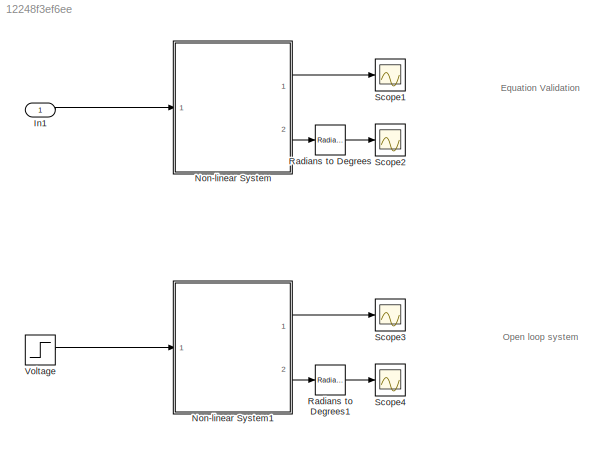
MODEL slx_12248f3ef6ee
KIND model
CONFIG AbsTol = auto
CONFIG EnableMultiTasking = off
CONFIG FixedStep = auto
CONFIG MaxStep = auto
CONFIG MinStep = auto
CONFIG RelTol = 1e-5
CONFIG SampleTimeConstraint = Unconstrained
CONFIG Solver = VariableStepAuto
CONFIG SolverName = VariableStepAuto
CONFIG StartTime = 0.0
CONFIG StopTime = 10
BLOCK [Inport] In1
  IconDisplay = Port number
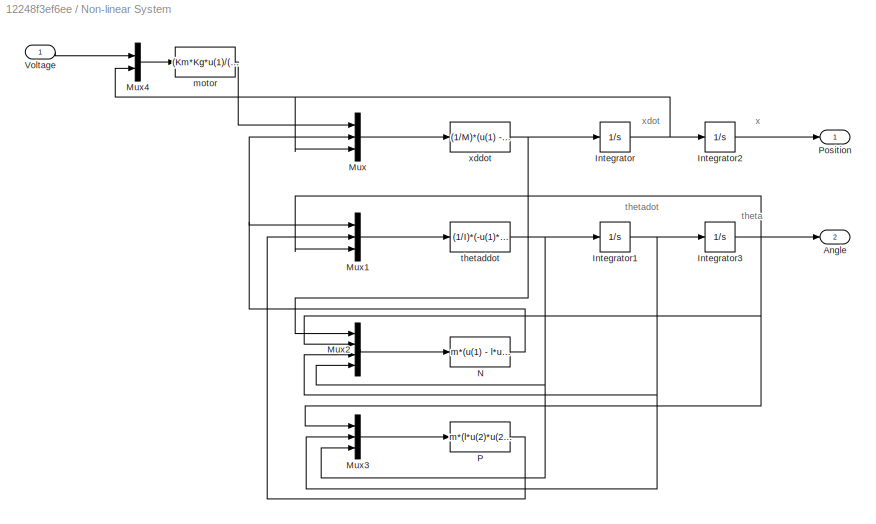
BLOCK [SubSystem] Non-linear System
  Ports = [1, 2]
  RequestExecContextInheritance = off
BLOCK [Outport] Non-linear System/Angle
  IconDisplay = Port number
  Port = 2
BLOCK [Integrator] Non-linear System/Integrator
  ContinuousStateAttributes = 'xdot'
  Ports = [1, 1]
BLOCK [Integrator] Non-linear System/Integrator1
  ContinuousStateAttributes = 'thetadot'
  Ports = [1, 1]
BLOCK [Integrator] Non-linear System/Integrator2
  ContinuousStateAttributes = 'x'
  Ports = [1, 1]
BLOCK [Integrator] Non-linear System/Integrator3
  ContinuousStateAttributes = 'theta'
  InitialCondition = pi/2
  Ports = [1, 1]
BLOCK [Mux] Non-linear System/Mux
  DisplayOption = bar
  Inputs = 3
  Ports = [3, 1]
BLOCK [Mux] Non-linear System/Mux1
  DisplayOption = bar
  Inputs = 3
  Ports = [3, 1]
BLOCK [Mux] Non-linear System/Mux2
  DisplayOption = bar
  Ports = [4, 1]
BLOCK [Mux] Non-linear System/Mux3
  DisplayOption = bar
  Inputs = 3
  Ports = [3, 1]
BLOCK [Mux] Non-linear System/Mux4
  DisplayOption = bar
  Inputs = 2
  Ports = [2, 1]
BLOCK [Fcn] Non-linear System/N
  Expr = m*(u(1) - l*u(3)*u(3)*sin(u(2)) + l*u(4)*cos(u(2)))
BLOCK [Fcn] Non-linear System/P
  Expr = m*(l*u(2)*u(2)*cos(u(1)) + l*u(3)*sin(u(1)) + g)
BLOCK [Outport] Non-linear System/Position
  IconDisplay = Port number
BLOCK [Inport] Non-linear System/Voltage
  IconDisplay = Port number
BLOCK [Fcn] Non-linear System/motor
  Expr = (Km*Kg*u(1)/(R*r))-(Km^2*Kg^2*u(2)/(R*r^2))
BLOCK [Fcn] Non-linear System/thetaddot
  Expr = (1/I)*(-u(1)*l*cos(u(3)) - u(2)*l*sin(u(3)))
BLOCK [Fcn] Non-linear System/xddot
  Expr = (1/M)*(u(1) - u(2) - b*u(3))
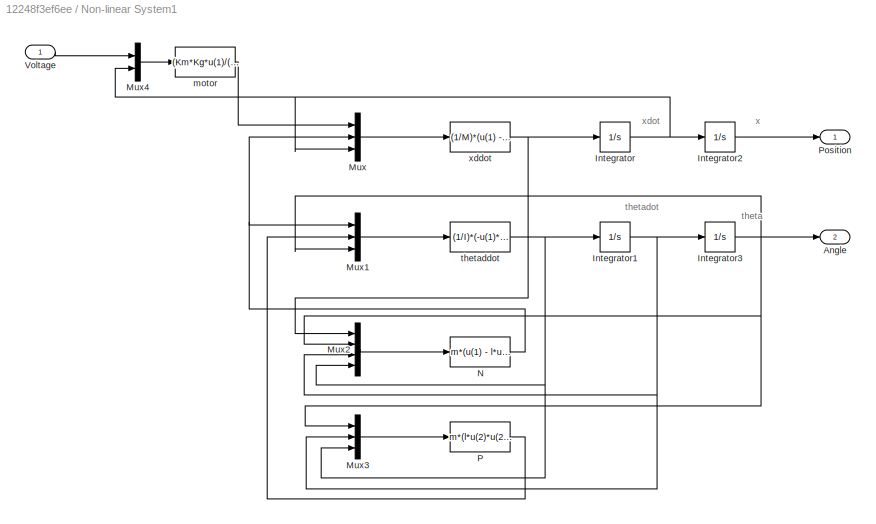
BLOCK [SubSystem] Non-linear System1
  Ports = [1, 2]
  RequestExecContextInheritance = off
BLOCK [Outport] Non-linear System1/Angle
  IconDisplay = Port number
  Port = 2
BLOCK [Integrator] Non-linear System1/Integrator
  ContinuousStateAttributes = 'xdot'
  Ports = [1, 1]
BLOCK [Integrator] Non-linear System1/Integrator1
  ContinuousStateAttributes = 'thetadot'
  Ports = [1, 1]
BLOCK [Integrator] Non-linear System1/Integrator2
  ContinuousStateAttributes = 'x'
  Ports = [1, 1]
BLOCK [Integrator] Non-linear System1/Integrator3
  ContinuousStateAttributes = 'theta'
  InitialCondition = pi/2
  Ports = [1, 1]
BLOCK [Mux] Non-linear System1/Mux
  DisplayOption = bar
  Inputs = 3
  Ports = [3, 1]
BLOCK [Mux] Non-linear System1/Mux1
  DisplayOption = bar
  Inputs = 3
  Ports = [3, 1]
BLOCK [Mux] Non-linear System1/Mux2
  DisplayOption = bar
  Ports = [4, 1]
BLOCK [Mux] Non-linear System1/Mux3
  DisplayOption = bar
  Inputs = 3
  Ports = [3, 1]
BLOCK [Mux] Non-linear System1/Mux4
  DisplayOption = bar
  Inputs = 2
  Ports = [2, 1]
BLOCK [Fcn] Non-linear System1/N
  Expr = m*(u(1) - l*u(3)*u(3)*sin(u(2)) + l*u(4)*cos(u(2)))
BLOCK [Fcn] Non-linear System1/P
  Expr = m*(l*u(2)*u(2)*cos(u(1)) + l*u(3)*sin(u(1)) + g)
BLOCK [Outport] Non-linear System1/Position
  IconDisplay = Port number
BLOCK [Inport] Non-linear System1/Voltage
  IconDisplay = Port number
BLOCK [Fcn] Non-linear System1/motor
  Expr = (Km*Kg*u(1)/(R*r))-(Km^2*Kg^2*u(2)/(R*r^2))
BLOCK [Fcn] Non-linear System1/thetaddot
  Expr = (1/I)*(-u(1)*l*cos(u(3)) - u(2)*l*sin(u(3)))
BLOCK [Fcn] Non-linear System1/xddot
  Expr = (1/M)*(u(1) - u(2) - b*u(3))
BLOCK [Reference] Radians to Degrees  REF=simulink_extras/Transformations/Radians
to Degrees
  Ports = [1, 1]
  SourceBlock = simulink_extras/Transformations/Radians\nto Degrees
  SourceProductBaseCode = SL
  SourceProductName = Simulink
  SourceType = RadiansToDegrees
BLOCK [Reference] Radians to Degrees1  REF=simulink_extras/Transformations/Radians
to Degrees
  Ports = [1, 1]
  SourceBlock = simulink_extras/Transformations/Radians\nto Degrees
  SourceProductBaseCode = SL
  SourceProductName = Simulink
  SourceType = RadiansToDegrees
BLOCK [Scope] Scope1
  Floating = off
  NumInputPorts = 1
  Ports = [1]
  ScopeSpecificationString = Simulink.scopes.TimeScopeBlockCfg('CurrentConfiguration', extmgr.ConfigurationSet(extmgr.Configuration('Core','General UI',true),extmgr.Configuration('Core','Source UI',true),extmgr.Configuration('Sources','WiredSimulink',true,'DataLoggingVariableName','ScopeData1'),extmgr.Configuration('Visuals','Time Domain',true,'SerializedDisplays',{struct('MinYLimReal','-0.05455','MaxYLimReal','0.0587','YLabe...<+1446ch>
BLOCK [Scope] Scope2
  Floating = off
  NumInputPorts = 1
  Ports = [1]
  ScopeSpecificationString = Simulink.scopes.TimeScopeBlockCfg('CurrentConfiguration', extmgr.ConfigurationSet(extmgr.Configuration('Core','General UI',true),extmgr.Configuration('Core','Source UI',true),extmgr.Configuration('Sources','WiredSimulink',true,'DataLoggingVariableName','ScopeData2'),extmgr.Configuration('Visuals','Time Domain',true,'SerializedDisplays',{struct('MinYLimReal','-100.28303','MaxYLimReal','111.14256','...<+1515ch>
BLOCK [Scope] Scope3
  Floating = off
  NumInputPorts = 1
  Ports = [1]
  ScopeSpecificationString = Simulink.scopes.TimeScopeBlockCfg('CurrentConfiguration', extmgr.ConfigurationSet(extmgr.Configuration('Core','General UI',true),extmgr.Configuration('Core','Source UI',true),extmgr.Configuration('Sources','WiredSimulink',true,'DataLoggingVariableName','ScopeData1'),extmgr.Configuration('Visuals','Time Domain',true,'SerializedDisplays',{struct('MinYLimReal','-0.27021','MaxYLimReal','2.43188','YLab...<+1451ch>
BLOCK [Scope] Scope4
  Floating = off
  NumInputPorts = 1
  Ports = [1]
  ScopeSpecificationString = Simulink.scopes.TimeScopeBlockCfg('CurrentConfiguration', extmgr.ConfigurationSet(extmgr.Configuration('Core','General UI',true),extmgr.Configuration('Core','Source UI',true),extmgr.Configuration('Sources','WiredSimulink',true,'DataLoggingVariableName','ScopeData2'),extmgr.Configuration('Visuals','Time Domain',true,'SerializedDisplays',{struct('MinYLimReal','-100.26713','MaxYLimReal','111.14079','...<+1516ch>
BLOCK [Step] Voltage
  Before = 1
  SampleTime = 0
  Time = 0
ANNOTATION (root): Equation Validation
ANNOTATION (root): Open loop system
ANNOTATION Non-linear System: theta
ANNOTATION Non-linear System: thetadot
ANNOTATION Non-linear System: x
ANNOTATION Non-linear System: xdot
ANNOTATION Non-linear System1: theta
ANNOTATION Non-linear System1: thetadot
ANNOTATION Non-linear System1: x
ANNOTATION Non-linear System1: xdot
LINE In1:1 -> Non-linear System:1
NET Non-linear System/Integrator1:1 -> Non-linear System/Integrator3:1, Non-linear System/Mux2:3, Non-linear System/Mux3:2
LINE Non-linear System/Integrator2:1 -> Non-linear System/Position:1
NET Non-linear System/Integrator3:1 -> Non-linear System/Angle:1, Non-linear System/Mux1:3, Non-linear System/Mux2:2, Non-linear System/Mux3:1
NET Non-linear System/Integrator:1 -> Non-linear System/Integrator2:1, Non-linear System/Mux4:2, Non-linear System/Mux:3
LINE Non-linear System/Mux1:1 -> Non-linear System/thetaddot:1
LINE Non-linear System/Mux2:1 -> Non-linear System/N:1
LINE Non-linear System/Mux3:1 -> Non-linear System/P:1
LINE Non-linear System/Mux4:1 -> Non-linear System/motor:1
LINE Non-linear System/Mux:1 -> Non-linear System/xddot:1
NET Non-linear System/N:1 -> Non-linear System/Mux1:1, Non-linear System/Mux:2
LINE Non-linear System/P:1 -> Non-linear System/Mux1:2
LINE Non-linear System/Voltage:1 -> Non-linear System/Mux4:1
LINE Non-linear System/motor:1 -> Non-linear System/Mux:1
NET Non-linear System/thetaddot:1 -> Non-linear System/Integrator1:1, Non-linear System/Mux2:4, Non-linear System/Mux3:3
NET Non-linear System/xddot:1 -> Non-linear System/Integrator:1, Non-linear System/Mux2:1
NET Non-linear System1/Integrator1:1 -> Non-linear System1/Integrator3:1, Non-linear System1/Mux2:3, Non-linear System1/Mux3:2
LINE Non-linear System1/Integrator2:1 -> Non-linear System1/Position:1
NET Non-linear System1/Integrator3:1 -> Non-linear System1/Angle:1, Non-linear System1/Mux1:3, Non-linear System1/Mux2:2, Non-linear System1/Mux3:1
NET Non-linear System1/Integrator:1 -> Non-linear System1/Integrator2:1, Non-linear System1/Mux4:2, Non-linear System1/Mux:3
LINE Non-linear System1/Mux1:1 -> Non-linear System1/thetaddot:1
LINE Non-linear System1/Mux2:1 -> Non-linear System1/N:1
LINE Non-linear System1/Mux3:1 -> Non-linear System1/P:1
LINE Non-linear System1/Mux4:1 -> Non-linear System1/motor:1
LINE Non-linear System1/Mux:1 -> Non-linear System1/xddot:1
NET Non-linear System1/N:1 -> Non-linear System1/Mux1:1, Non-linear System1/Mux:2
LINE Non-linear System1/P:1 -> Non-linear System1/Mux1:2
LINE Non-linear System1/Voltage:1 -> Non-linear System1/Mux4:1
LINE Non-linear System1/motor:1 -> Non-linear System1/Mux:1
NET Non-linear System1/thetaddot:1 -> Non-linear System1/Integrator1:1, Non-linear System1/Mux2:4, Non-linear System1/Mux3:3
NET Non-linear System1/xddot:1 -> Non-linear System1/Integrator:1, Non-linear System1/Mux2:1
LINE Non-linear System1:1 -> Scope3:1
LINE Non-linear System1:2 -> Radians to Degrees1:1
LINE Non-linear System:1 -> Scope1:1
LINE Non-linear System:2 -> Radians to Degrees:1
LINE Radians to Degrees1:1 -> Scope4:1
LINE Radians to Degrees:1 -> Scope2:1
LINE Voltage:1 -> Non-linear System1:1
note: NET lines group one-source signal fan-out (src -> all destinations, sorted); 1:1 wires keep LINE
